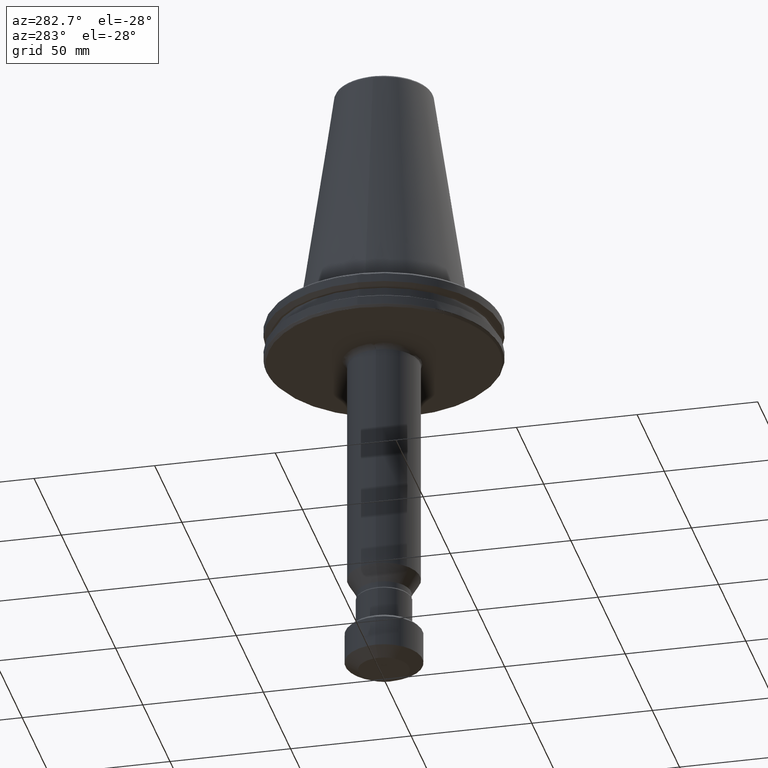
[diagram: clean part render]
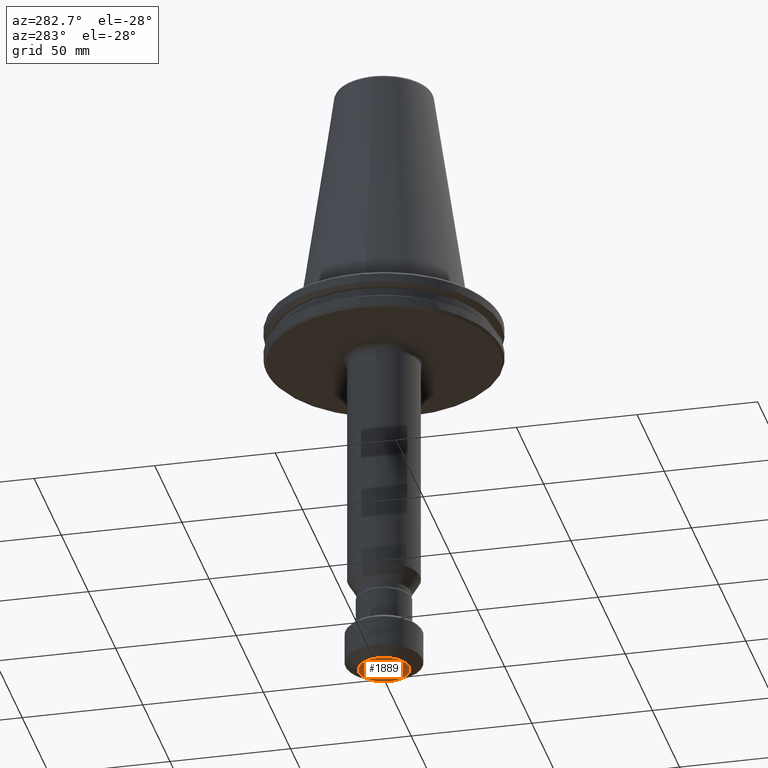
[diagram: same view with one face highlighted and labeled with its STEP entity id]
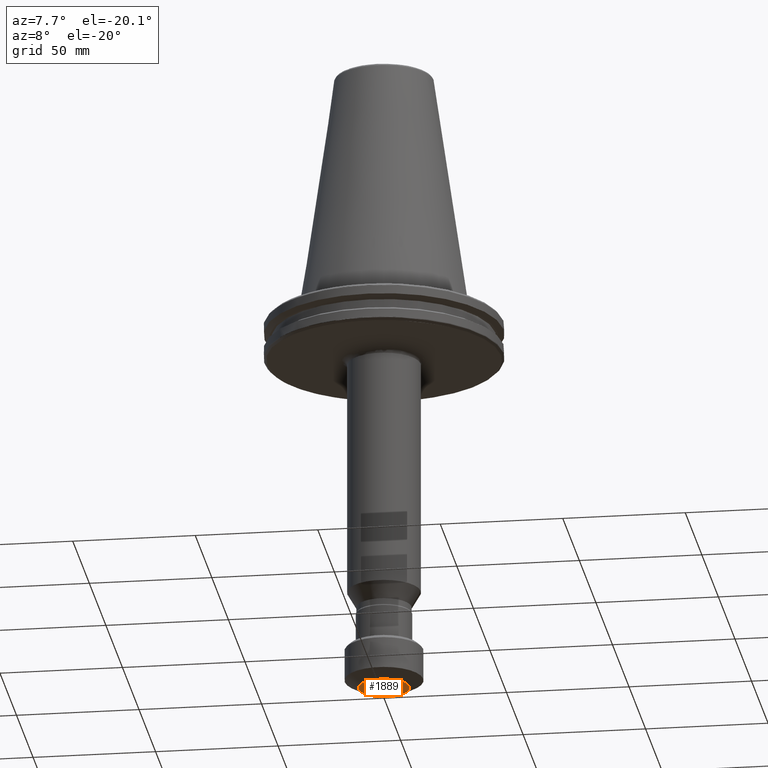
[diagram: same view with one face highlighted and labeled with its STEP entity id]
A machine part, auxiliary view. The second image highlights one B-rep face of the part: STEP entity #1889.
A second angle (auxiliary view) of the same face is appended — the face is thin or edge-on in the first view.
In plain terms, the highlighted planar face has unit normal (0, 0, 1).
Its self-contained STEP definition (entity closure, byte-faithful):
#358 = DIRECTION ( 'NONE',  ( 0.0000000000000000000, -0.0000000000000000000, 1.000000000000000000 ) ) ;
#434 = CARTESIAN_POINT ( 'NONE',  ( 10.50000000000000200, 0.0000000000000000000, -160.0000000000000300 ) ) ;
#465 = AXIS2_PLACEMENT_3D ( 'NONE', #3313, #2803, #1242 ) ;
#479 = ORIENTED_EDGE ( 'NONE', *, *, #540, .F. ) ;
#518 = ORIENTED_EDGE ( 'NONE', *, *, #1126, .F. ) ;
#540 = EDGE_CURVE ( 'NONE', #867, #1975, #3008, .T. ) ;
#550 = DIRECTION ( 'NONE',  ( 1.000000000000000000, 0.0000000000000000000, 0.0000000000000000000 ) ) ;
#691 = PLANE ( 'NONE',  #465 ) ;
#867 = VERTEX_POINT ( 'NONE', #932 ) ;
#932 = CARTESIAN_POINT ( 'NONE',  ( -10.50000000000000200, 1.622657008870243100E-015, -160.0000000000000300 ) ) ;
#1126 = EDGE_CURVE ( 'NONE', #1975, #867, #2624, .T. ) ;
#1242 = DIRECTION ( 'NONE',  ( 1.000000000000000000, 0.0000000000000000000, -0.0000000000000000000 ) ) ;
#1259 = EDGE_LOOP ( 'NONE', ( #518, #479 ) ) ;
#1467 = FACE_OUTER_BOUND ( 'NONE', #1259, .T. ) ;
#1889 = ADVANCED_FACE ( 'NONE', ( #1467 ), #691, .F. ) ;
#1906 = AXIS2_PLACEMENT_3D ( 'NONE', #2957, #2945, #2936 ) ;
#1975 = VERTEX_POINT ( 'NONE', #434 ) ;
#2624 = CIRCLE ( 'NONE', #3185, 10.50000000000000200 ) ;
#2803 = DIRECTION ( 'NONE',  ( 0.0000000000000000000, 0.0000000000000000000, 1.000000000000000000 ) ) ;
#2936 = DIRECTION ( 'NONE',  ( 1.000000000000000000, 0.0000000000000000000, 0.0000000000000000000 ) ) ;
#2945 = DIRECTION ( 'NONE',  ( 0.0000000000000000000, -0.0000000000000000000, 1.000000000000000000 ) ) ;
#2956 = CARTESIAN_POINT ( 'NONE',  ( 0.0000000000000000000, 0.0000000000000000000, -160.0000000000000300 ) ) ;
#2957 = CARTESIAN_POINT ( 'NONE',  ( 0.0000000000000000000, 0.0000000000000000000, -160.0000000000000300 ) ) ;
#3008 = CIRCLE ( 'NONE', #1906, 10.50000000000000200 ) ;
#3185 = AXIS2_PLACEMENT_3D ( 'NONE', #2956, #358, #550 ) ;
#3313 = CARTESIAN_POINT ( 'NONE',  ( 0.0000000000000000000, 0.0000000000000000000, -160.0000000000000300 ) ) ;